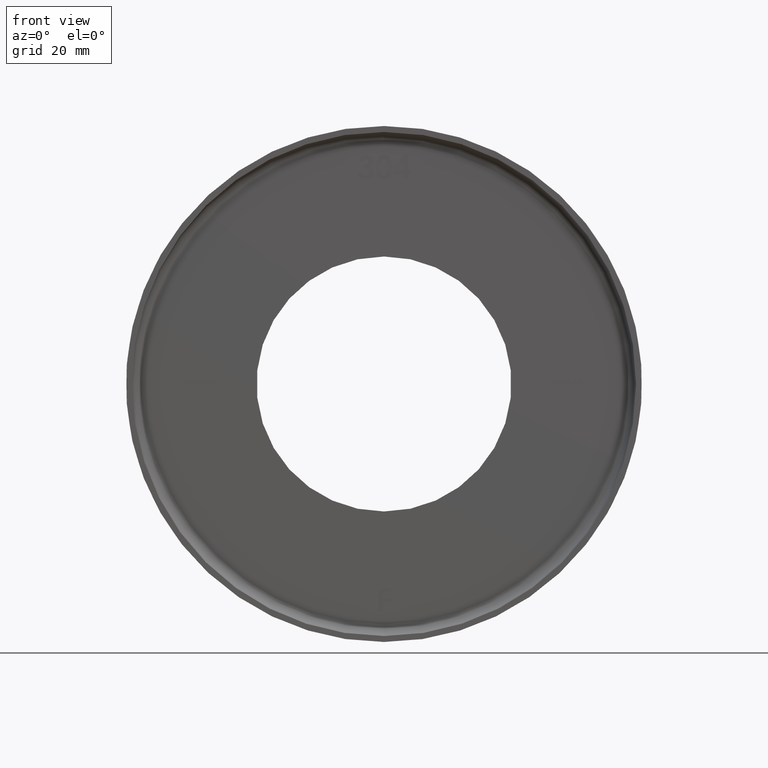
[diagram: clean part render]
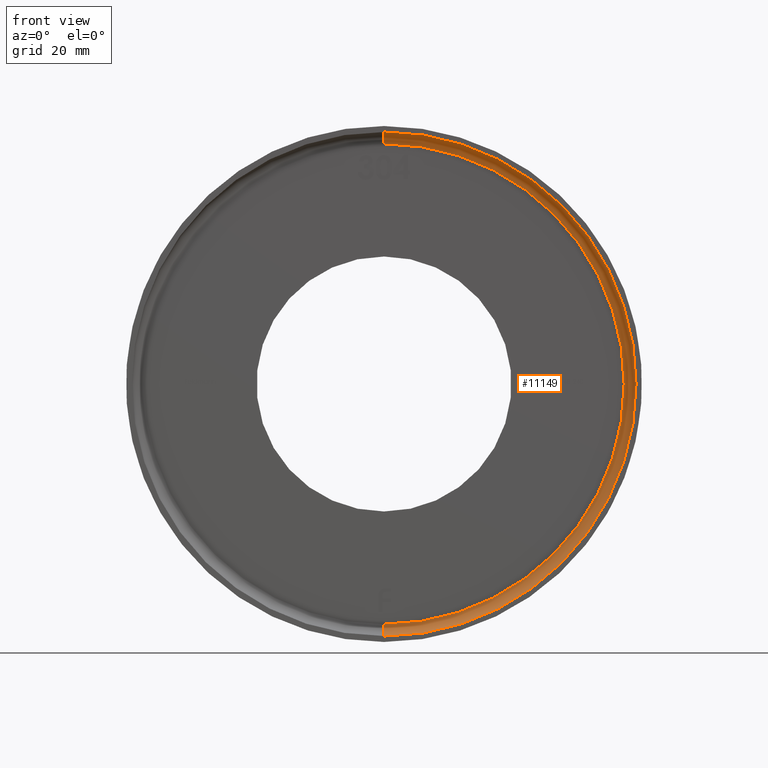
[diagram: same view with one face highlighted and labeled with its STEP entity id]
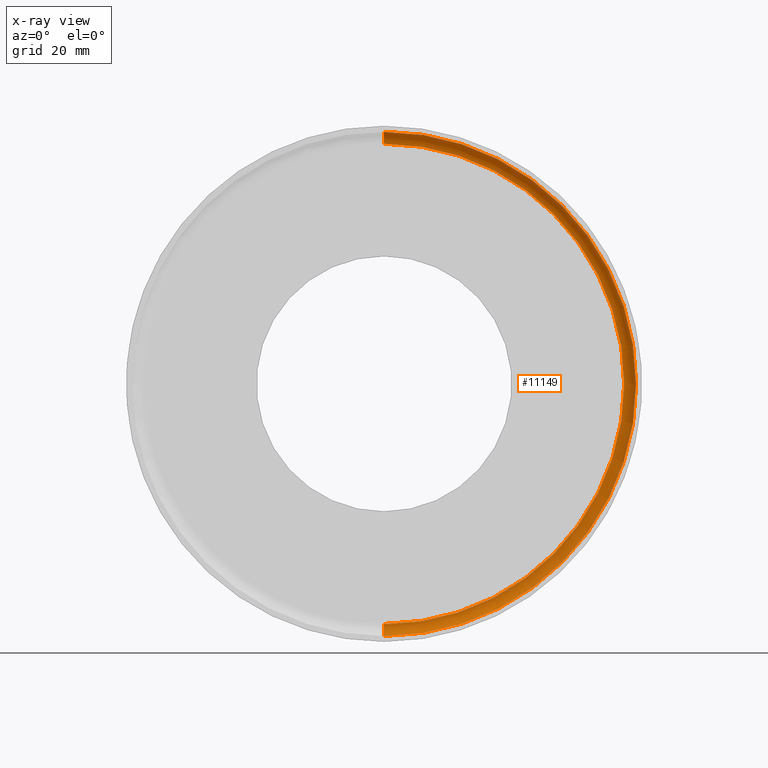
[diagram: x-ray of the same camera — body ghosted, the highlighted face saturated]
A machine part, front view. The second image highlights one B-rep face of the part: STEP entity #11149.
The next image is the same camera in x-ray: the body ghosted, the highlighted face saturated — about 0% of this face is hidden behind the body in this view.
In plain terms, the highlighted toroidal blend (fillet) surface has major radius 40.5 mm and minor (blend) radius 2 mm.
Its self-contained STEP definition (entity closure, byte-faithful):
#1092 = DIRECTION ( 'NONE',  ( 0.000000000000000000, 0.000000000000000000, 1.000000000000000000 ) ) ;
#1293 = CARTESIAN_POINT ( 'NONE',  ( 5.204748896376250107E-15, 6.999999999999999112, 42.49999999999999289 ) ) ;
#1848 = EDGE_CURVE ( 'NONE', #10223, #12202, #12477, .T. ) ;
#2240 = DIRECTION ( 'NONE',  ( -0.000000000000000000, -1.000000000000000000, -0.000000000000000000 ) ) ;
#2317 = DIRECTION ( 'NONE',  ( 0.000000000000000000, 0.000000000000000000, -1.000000000000000000 ) ) ;
#2404 = AXIS2_PLACEMENT_3D ( 'NONE', #14921, #5106, #6206 ) ;
#3671 = CARTESIAN_POINT ( 'NONE',  ( 0.000000000000000000, 9.000000000000001776, 0.000000000000000000 ) ) ;
#4896 = CIRCLE ( 'NONE', #10962, 2.000000000000001776 ) ;
#4921 = DIRECTION ( 'NONE',  ( 0.000000000000000000, 0.000000000000000000, -1.000000000000000000 ) ) ;
#5106 = DIRECTION ( 'NONE',  ( 1.000000000000000000, 0.000000000000000000, -1.224646799147353207E-16 ) ) ;
#5196 = EDGE_CURVE ( 'NONE', #15814, #8493, #6649, .T. ) ;
#5255 = EDGE_CURVE ( 'NONE', #12202, #8493, #6460, .T. ) ;
#5338 = AXIS2_PLACEMENT_3D ( 'NONE', #3671, #8513, #4921 ) ;
#5452 = AXIS2_PLACEMENT_3D ( 'NONE', #14557, #8321, #2317 ) ;
#6206 = DIRECTION ( 'NONE',  ( -1.224646799147353454E-16, 0.000000000000000000, -1.000000000000000000 ) ) ;
#6318 = CARTESIAN_POINT ( 'NONE',  ( 0.000000000000000000, 9.000000000000001776, -40.49999999999999289 ) ) ;
#6460 = CIRCLE ( 'NONE', #2404, 2.000000000000001776 ) ;
#6649 = CIRCLE ( 'NONE', #5452, 42.49999999999999289 ) ;
#8321 = DIRECTION ( 'NONE',  ( -0.000000000000000000, -1.000000000000000000, -0.000000000000000000 ) ) ;
#8493 = VERTEX_POINT ( 'NONE', #1293 ) ;
#8513 = DIRECTION ( 'NONE',  ( -0.000000000000000000, -1.000000000000000000, -0.000000000000000000 ) ) ;
#9041 = CARTESIAN_POINT ( 'NONE',  ( 5.082284216461514959E-15, 9.000000000000001776, 40.49999999999999289 ) ) ;
#9664 = CARTESIAN_POINT ( 'NONE',  ( 0.000000000000000000, 6.999999999999999112, 0.000000000000000000 ) ) ;
#10223 = VERTEX_POINT ( 'NONE', #6318 ) ;
#10904 = DIRECTION ( 'NONE',  ( 0.000000000000000000, 0.000000000000000000, -1.000000000000000000 ) ) ;
#10962 = AXIS2_PLACEMENT_3D ( 'NONE', #15908, #13639, #1092 ) ;
#11149 = ADVANCED_FACE ( 'NONE', ( #12323 ), #13113, .F. ) ;
#11194 = CARTESIAN_POINT ( 'NONE',  ( 0.000000000000000000, 6.999999999999999112, -42.49999999999999289 ) ) ;
#12202 = VERTEX_POINT ( 'NONE', #9041 ) ;
#12323 = FACE_OUTER_BOUND ( 'NONE', #13005, .T. ) ;
#12477 = CIRCLE ( 'NONE', #5338, 40.49999999999999289 ) ;
#12894 = ORIENTED_EDGE ( 'NONE', *, *, #5196, .T. ) ;
#13005 = EDGE_LOOP ( 'NONE', ( #13279, #13972, #15220, #12894 ) ) ;
#13113 = TOROIDAL_SURFACE ( 'NONE', #13920, 40.49999999999999289, 2.000000000000001776 ) ;
#13279 = ORIENTED_EDGE ( 'NONE', *, *, #5255, .F. ) ;
#13639 = DIRECTION ( 'NONE',  ( -1.000000000000000000, 0.000000000000000000, 0.000000000000000000 ) ) ;
#13920 = AXIS2_PLACEMENT_3D ( 'NONE', #9664, #2240, #10904 ) ;
#13972 = ORIENTED_EDGE ( 'NONE', *, *, #1848, .F. ) ;
#14557 = CARTESIAN_POINT ( 'NONE',  ( 0.000000000000000000, 6.999999999999999112, 0.000000000000000000 ) ) ;
#14921 = CARTESIAN_POINT ( 'NONE',  ( 4.959819536546779811E-15, 6.999999999999999112, 40.49999999999999289 ) ) ;
#15211 = EDGE_CURVE ( 'NONE', #10223, #15814, #4896, .T. ) ;
#15220 = ORIENTED_EDGE ( 'NONE', *, *, #15211, .T. ) ;
#15814 = VERTEX_POINT ( 'NONE', #11194 ) ;
#15908 = CARTESIAN_POINT ( 'NONE',  ( 0.000000000000000000, 6.999999999999999112, -40.49999999999999289 ) ) ;